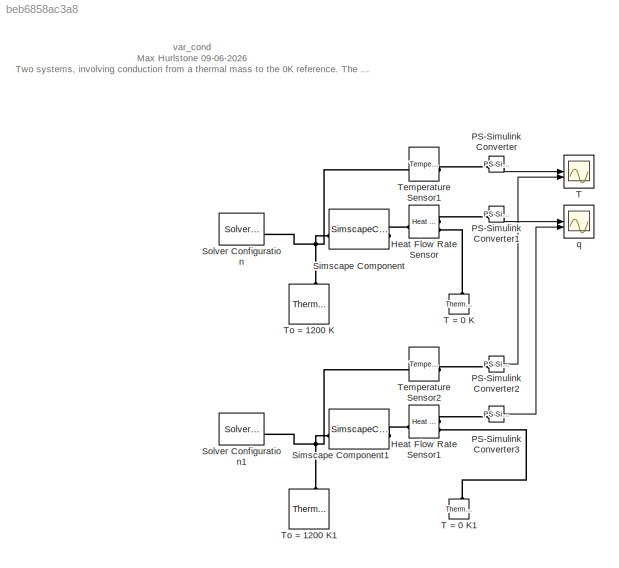
MODEL slx_beb6858ac3a8
KIND model
CONFIG AbsTol = auto
CONFIG EnableMultiTasking = off
CONFIG FixedStep = auto
CONFIG MaxStep = auto
CONFIG MinStep = auto
CONFIG RelTol = 1e-3
CONFIG SampleTimeConstraint = Unconstrained
CONFIG SolverName = VariableStepAuto
CONFIG StartTime = 0.0
CONFIG StopTime = 10.0
BLOCK [Reference] Heat Flow Rate Sensor  REF=fl_lib/Thermal/Thermal Sensors/Heat Flow Rate
Sensor
  SourceBlock = fl_lib/Thermal/Thermal Sensors/Heat Flow Rate\nSensor
  SourceType = Heat Flow Rate\nSensor
BLOCK [Reference] Heat Flow Rate Sensor1  REF=fl_lib/Thermal/Thermal Sensors/Heat Flow Rate
Sensor
  SourceBlock = fl_lib/Thermal/Thermal Sensors/Heat Flow Rate\nSensor
  SourceType = Heat Flow Rate\nSensor
BLOCK [Reference] PS-Simulink Converter  REF=nesl_utility/PS-Simulink
Converter
  SourceBlock = nesl_utility/PS-Simulink\nConverter
  SourceType = PS-Simulink\nConverter
BLOCK [Reference] PS-Simulink Converter1  REF=nesl_utility/PS-Simulink
Converter
  SourceBlock = nesl_utility/PS-Simulink\nConverter
  SourceType = PS-Simulink\nConverter
BLOCK [Reference] PS-Simulink Converter2  REF=nesl_utility/PS-Simulink
Converter
  SourceBlock = nesl_utility/PS-Simulink\nConverter
  SourceType = PS-Simulink\nConverter
BLOCK [Reference] PS-Simulink Converter3  REF=nesl_utility/PS-Simulink
Converter
  SourceBlock = nesl_utility/PS-Simulink\nConverter
  SourceType = PS-Simulink\nConverter
BLOCK [SimscapeComponentBlock] Simscape Component
  ClassName = var_cond
  ComponentPath = DLSimscape.Thermal.var_cond
  ComponentVariantNames = ["var_cond"]
  ComponentVariants = ["DLSimscape.Thermal.var_cond"]
  CopyFcn = simscape.sscblock.internal.componentBlockCallback(gcbh,'COPY')
  InternalSimscapePortConfiguration = {"Bottom":[],"Left":[{"id":"A","label":"A","type":"foundation.thermal.thermal"}],"Right":[{"id":"B","label":"B","type":"foundation.thermal.thermal"}],"Top":[]}
  L = 1
  L_conf = compiletime
  L_unit = m
  MaskType = Conductive Heat Transfer
  PreCopyFcn = simscape.sscblock.internal.componentBlockCallback(gcbh,'PRECOPY')
  PreDeleteFcn = simscape.sscblock.internal.componentBlockCallback(gcbh,'PREDELETE')
  Q = 0
  Q_nominal_specify = off
  Q_nominal_unit = W
  Q_nominal_value = 1
  Q_priority = None
  Q_specify = off
  Q_unit = W
  SchemaVersion = 1
  SourceFile = DLSimscape.Thermal.var_cond
  T = 0
  T_nominal_specify = off
  T_nominal_unit = K
  T_nominal_value = 1
  T_priority = None
  T_specify = off
  T_unit = K
  area = 0.1
  area_conf = compiletime
  area_unit = m^2
  d_in = 0.05
  d_in_conf = compiletime
  d_in_unit = m
  d_out = 0.1
  d_out_conf = compiletime
  d_out_unit = m
  temp_TLU = [200, 273, 400, 600, 800, 1000, 1200]
  temp_TLU_conf = compiletime
  temp_TLU_unit = K
  th_cond = 401
  th_cond_TLU = [400, 350, 300, 250, 200, 150, 100]
  th_cond_TLU_conf = compiletime
  th_cond_TLU_unit = W/(K*m)
  th_cond_conf = compiletime
  th_cond_min = 10
  th_cond_min_conf = compiletime
  th_cond_min_unit = W/(K*m)
  th_cond_unit = W/(K*m)
  thermal_type = foundation.enum.ConstantVariableTabulated.Tabulated
  thermal_type_conf = compiletime
  thermal_type_unit = 1
  thickness = 0.1
  thickness_conf = compiletime
  thickness_unit = m
  wall_geometry = foundation.enum.ConductionWallGeometry.Planar
  wall_geometry_conf = compiletime
  wall_geometry_unit = 1
BLOCK [SimscapeComponentBlock] Simscape Component1
  ClassName = var_cond
  ComponentPath = DLSimscape.Thermal.var_cond
  ComponentVariantNames = ["var_cond"]
  ComponentVariants = ["DLSimscape.Thermal.var_cond"]
  CopyFcn = simscape.sscblock.internal.componentBlockCallback(gcbh,'COPY')
  InternalSimscapePortConfiguration = {"Bottom":[],"Left":[{"id":"A","label":"A","type":"foundation.thermal.thermal"}],"Right":[{"id":"B","label":"B","type":"foundation.thermal.thermal"}],"Top":[]}
  L = 1
  L_conf = compiletime
  L_unit = m
  MaskType = Conductive Heat Transfer
  PreCopyFcn = simscape.sscblock.internal.componentBlockCallback(gcbh,'PRECOPY')
  PreDeleteFcn = simscape.sscblock.internal.componentBlockCallback(gcbh,'PREDELETE')
  Q = 0
  Q_nominal_specify = off
  Q_nominal_unit = W
  Q_nominal_value = 1
  Q_priority = None
  Q_specify = off
  Q_unit = W
  SchemaVersion = 1
  SourceFile = DLSimscape.Thermal.var_cond
  T = 0
  T_nominal_specify = off
  T_nominal_unit = K
  T_nominal_value = 1
  T_priority = None
  T_specify = off
  T_unit = K
  area = 0.1
  area_conf = compiletime
  area_unit = m^2
  d_in = 0.05
  d_in_conf = compiletime
  d_in_unit = m
  d_out = 0.1
  d_out_conf = compiletime
  d_out_unit = m
  temp_TLU = [200, 273, 400, 600, 800, 1000, 1200]
  temp_TLU_conf = compiletime
  temp_TLU_unit = K
  th_cond = 401
  th_cond_TLU = [413, 401, 392, 383, 371, 357, 342]
  th_cond_TLU_conf = compiletime
  th_cond_TLU_unit = W/(K*m)
  th_cond_conf = compiletime
  th_cond_min = 10
  th_cond_min_conf = compiletime
  th_cond_min_unit = W/(K*m)
  th_cond_unit = W/(K*m)
  thermal_type = foundation.enum.ConstantVariableTabulated.Constant
  thermal_type_conf = compiletime
  thermal_type_unit = 1
  thickness = 0.1
  thickness_conf = compiletime
  thickness_unit = m
  wall_geometry = foundation.enum.ConductionWallGeometry.Planar
  wall_geometry_conf = compiletime
  wall_geometry_unit = 1
BLOCK [Reference] Solver Configuration  REF=nesl_utility/Solver
Configuration
  SourceBlock = nesl_utility/Solver\nConfiguration
  SourceType = Solver\nConfiguration
BLOCK [Reference] Solver Configuration1  REF=nesl_utility/Solver
Configuration
  SourceBlock = nesl_utility/Solver\nConfiguration
  SourceType = Solver\nConfiguration
BLOCK [Scope] T
  ActiveDisplayYMaximum = 1349.9852287159856
  ActiveDisplayYMinimum = -149.86705844387026
  Floating = off
  GraphicalSettings = {"Style":{"BackgroundColor":[0.12941176470588237,0.12941176470588237,0.12941176470588237],"AxesColor":[0.07058823529411765,0.07058823529411765,0.07058823529411765],"LabelsColor":[0.8509803921568627,0.8509803921568627,0.8509803921568627],"PreserveColors":false,"Visible":[true,true],"LineStyle":["-","-"],"LineWidth":[1.5,1.5],"BarWidth":[0.9,0.9],"LineColor":["auto","auto"],"LineFaceAlpha":[1,1],"Li...<+2172ch>
  MultipleDisplayCache = [{"MaxYLimMag":1349.9852287159856,"MaxYLimReal":1349.9852287159856,"MinYLimMag":0,"MinYLimReal":-149.86705844387026,"PlotAsMagnitudePhase":false,"ShowGrid":true,"ShowLegend":false,"Title":"%<SignalLabel>","YLabel":""}]
  NumInputPorts = 2
  ScopeFrameLocation = window
  WasSavedAsWebScope = on
  WindowPosition = [1440.000000,510.000000,560.000000,420.000000,]
BLOCK [Reference] T = 0 K  REF=fl_lib/Thermal/Thermal Elements/Thermal Reference
  SourceBlock = fl_lib/Thermal/Thermal Elements/Thermal Reference
  SourceType = Thermal Reference
BLOCK [Reference] T = 0 K1  REF=fl_lib/Thermal/Thermal Elements/Thermal Reference
  SourceBlock = fl_lib/Thermal/Thermal Elements/Thermal Reference
  SourceType = Thermal Reference
BLOCK [Reference] Temperature Sensor1  REF=fl_lib/Thermal/Thermal Sensors/Temperature Sensor
  SourceBlock = fl_lib/Thermal/Thermal Sensors/Temperature Sensor
  SourceType = Temperature Sensor
BLOCK [Reference] Temperature Sensor2  REF=fl_lib/Thermal/Thermal Sensors/Temperature Sensor
  SourceBlock = fl_lib/Thermal/Thermal Sensors/Temperature Sensor
  SourceType = Temperature Sensor
BLOCK [Reference] To = 1200 K  REF=fl_lib/Thermal/Thermal Elements/Thermal Mass
  SourceBlock = fl_lib/Thermal/Thermal Elements/Thermal Mass
  SourceType = Thermal Mass
BLOCK [Reference] To = 1200 K1  REF=fl_lib/Thermal/Thermal Elements/Thermal Mass
  SourceBlock = fl_lib/Thermal/Thermal Elements/Thermal Mass
  SourceType = Thermal Mass
BLOCK [Scope] q
  ActiveDisplayYMaximum = 517043.87399895431
  ActiveDisplayYMinimum = -57394.865990588543
  DataLoggingVariableName = ScopeData1
  Floating = off
  GraphicalSettings = {"Style":{"BackgroundColor":[0.12941176470588237,0.12941176470588237,0.12941176470588237],"AxesColor":[0.07058823529411765,0.07058823529411765,0.07058823529411765],"LabelsColor":[0.8509803921568627,0.8509803921568627,0.8509803921568627],"PreserveColors":false,"Visible":[true,true],"LineStyle":["-","-"],"LineWidth":[1.5,1.5],"BarWidth":[0.9,0.9],"LineColor":["auto","auto"],"LineFaceAlpha":[1,1],"Li...<+2168ch>
  MultipleDisplayCache = [{"MaxYLimMag":517043.87399895431,"MaxYLimReal":517043.87399895431,"MinYLimMag":0,"MinYLimReal":-57394.865990588543,"PlotAsMagnitudePhase":false,"ShowGrid":true,"ShowLegend":false,"Title":"%<SignalLabel>","YLabel":""}]
  NumInputPorts = 2
  ScopeFrameLocation = window
  WasSavedAsWebScope = on
  WindowPosition = [1440.000000,510.000000,560.000000,420.000000,]
ANNOTATION (root): var_cond Max Hurlstone 09-06-2026 Two systems, involving conduction from a thermal mass to the 0K reference. The bottom one has a significantly varying thermal conductivity. Examine the scopes to see the difference in temperature vs time and flux vs time.
LINE PS-Simulink Converter1:1 -> q:1
LINE PS-Simulink Converter2:1 -> T:2
LINE PS-Simulink Converter3:1 -> q:2
LINE PS-Simulink Converter:1 -> T:1
PLINE Heat Flow Rate Sensor1:LConn1 -- Simscape Component1:RConn1
PLINE Heat Flow Rate Sensor1:RConn1 -- PS-Simulink Converter3:LConn1
PLINE Heat Flow Rate Sensor1:RConn2 -- T = 0 K1:LConn1
PLINE Heat Flow Rate Sensor:LConn1 -- Simscape Component:RConn1
PLINE Heat Flow Rate Sensor:RConn1 -- PS-Simulink Converter1:LConn1
PLINE Heat Flow Rate Sensor:RConn2 -- T = 0 K:LConn1
PLINE PS-Simulink Converter2:LConn1 -- Temperature Sensor2:RConn1
PLINE PS-Simulink Converter:LConn1 -- Temperature Sensor1:RConn1
PNET net1: Simscape Component1:LConn1 -- Solver Configuration1:RConn1 -- Temperature Sensor2:LConn1 -- To = 1200 K1:LConn1
PNET net2: Simscape Component:LConn1 -- Solver Configuration:RConn1 -- Temperature Sensor1:LConn1 -- To = 1200 K:LConn1
note: PNET lines group multi-terminal physical nets as a canonical sorted terminal list (undirected conserving connections); 2-terminal nets keep the pairwise PLINE form
